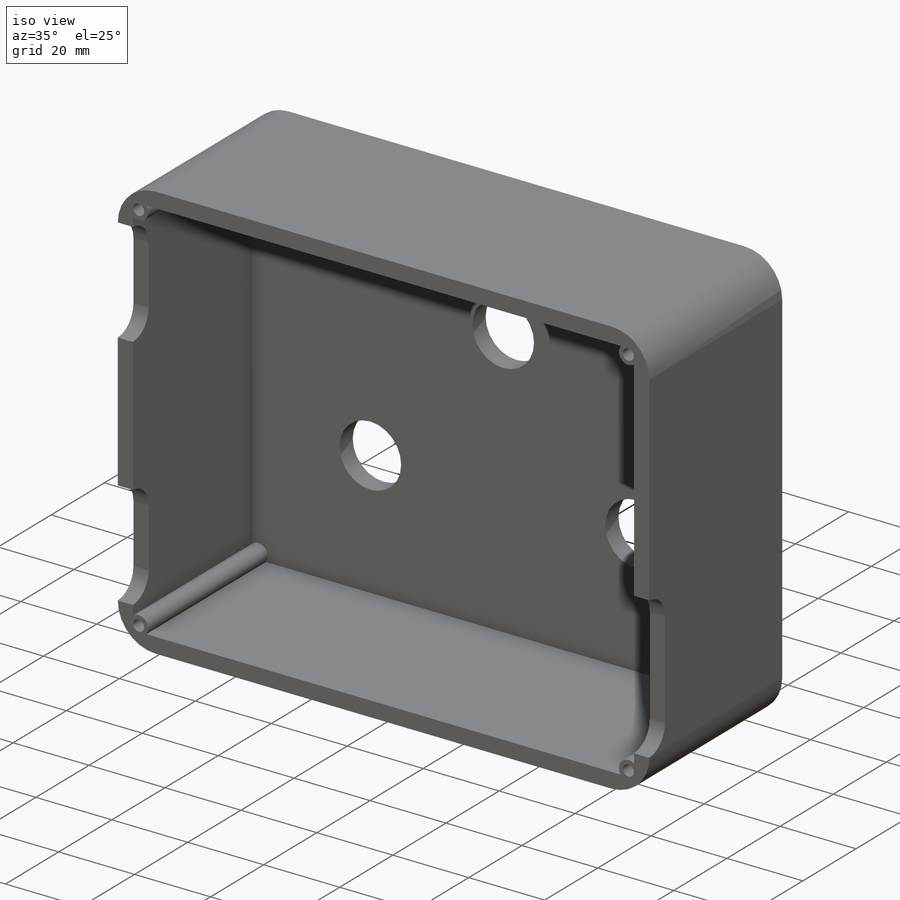
[diagram: iso view]
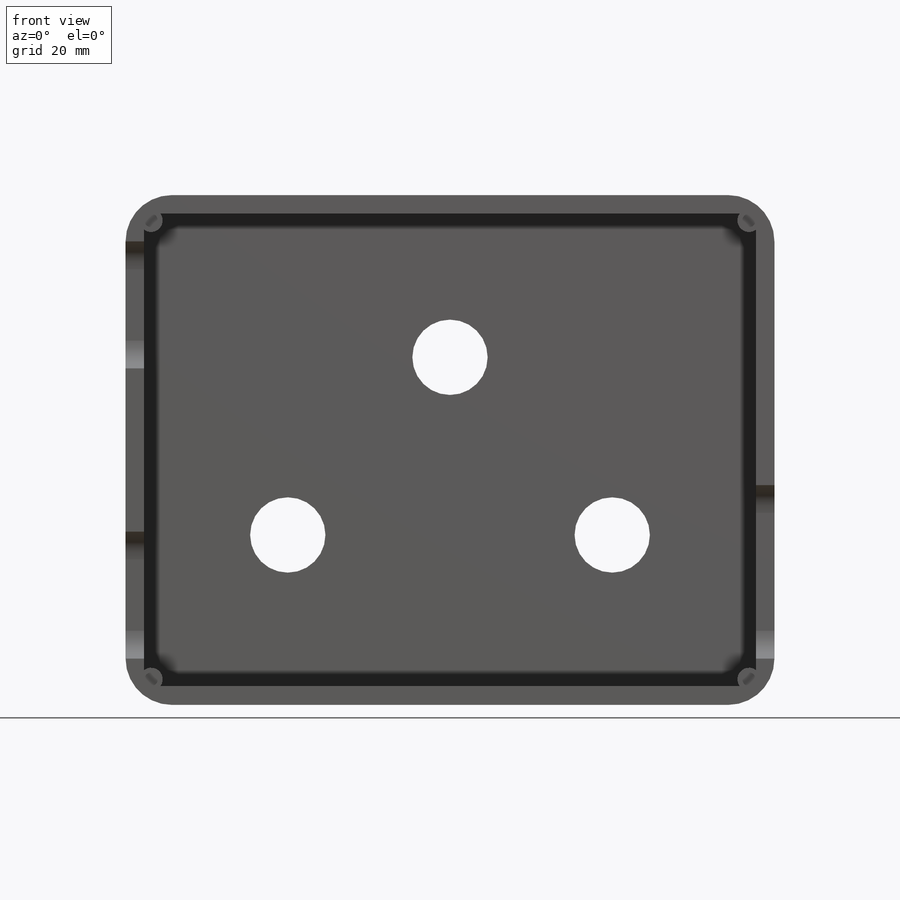
[diagram: front view]
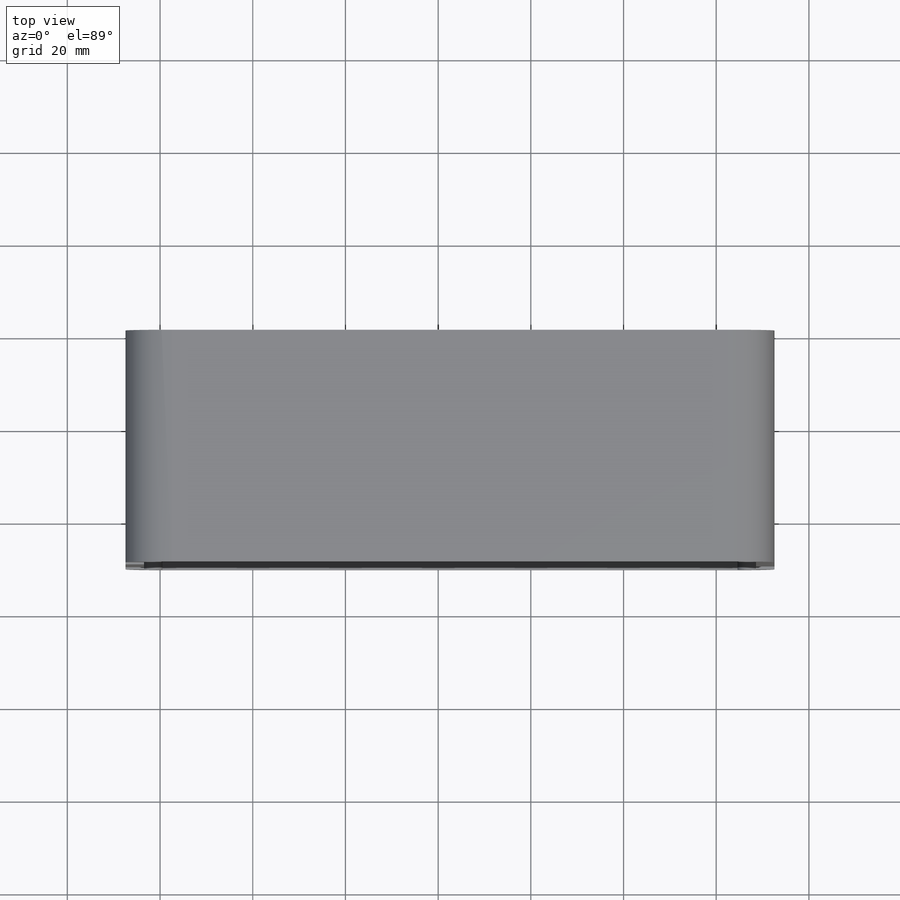
[diagram: top view]
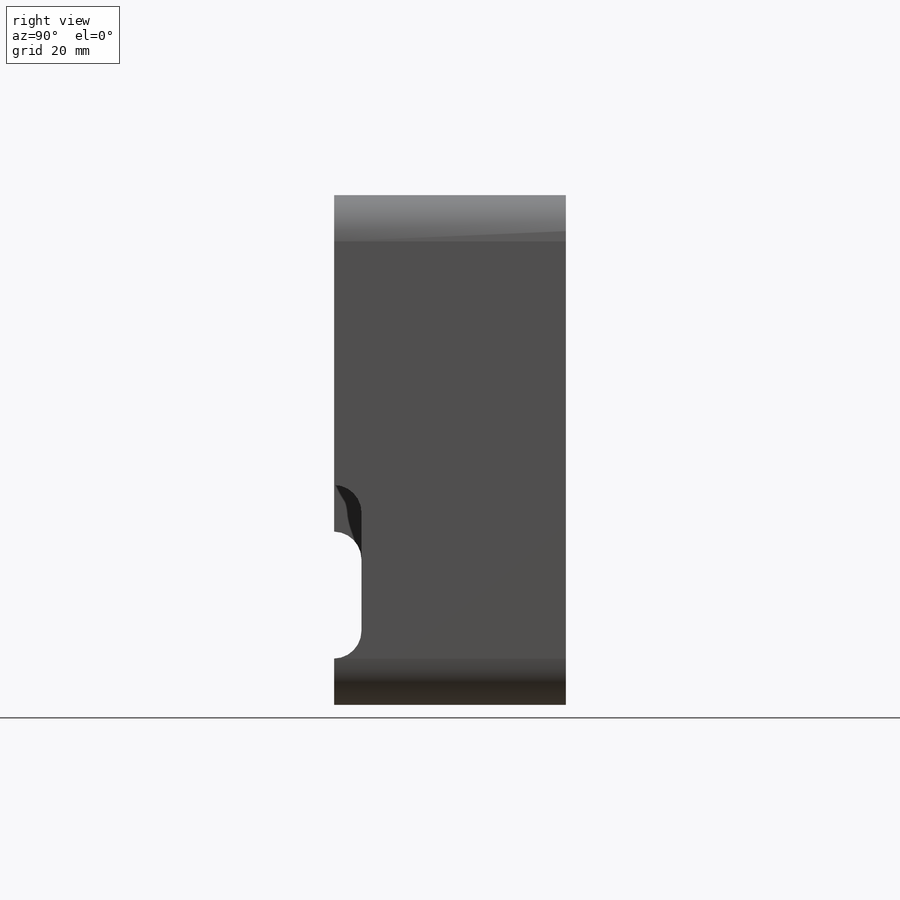
[diagram: right view]
SOLIDWORKS PART (.sldprt)
format: sldprt  version: not decoded by parser v0  size: 286,720 bytes
history: native  units: mm
features: sketch x6, cut_extrude x4, fillet x3, extrude x2, material x1 (+11 scaffold rows collapsed)
feature tree (27):
  scaffold x11  (default folders/planes/origin — collapsed)
  material  "Material <not specified>"
  sketch  "Sketch1"  dims[c1.D3=16.25mm c1.D5=16.25mm c1.D7=16.0mm c1.D8=10.0mm c1.D1=140.0mm c1.D2=110.0mm c1.D4=~36.666667mm c1.D6=35.0mm c2.D7=35.0mm]
  extrude  "Boss-Extrude1"  Depth=50mm
  sketch  "Sketch2"  dims[D1=4.0mm D2=4.0mm D3=4.0mm D4=4.0mm]
  cut_extrude  "Cut-Extrude1"  Depth=45mm
  sketch  "Sketch3"  dims[D1=1.5mm D2=1.5mm]
  extrude  "Boss-Extrude2"  Depth=45mm
  sketch  "Sketch4"  dims[D1=2.9mm]
  cut_extrude  "Cut-Extrude2"  Depth=20mm
  sketch  "Sketch5"
  cut_extrude  "Cut-Extrude3"  Depth=20mm
  fillet  "Fillet1"  Radius=6mm
  fillet  "Fillet2"  Radius=6mm
  sketch  "Sketch7"  dims[D1=5.9mm]
  cut_extrude  "Cut-Extrude4"  Depth=20mm
  fillet  "Fillet3"  Radius=6mm
decode coverage: 14 of 15 modeling features carry decoded parameters
note: ~ marks probable driven/reference dimensions
note: suppression state not decoded; provenance and decode notes live in map.json
